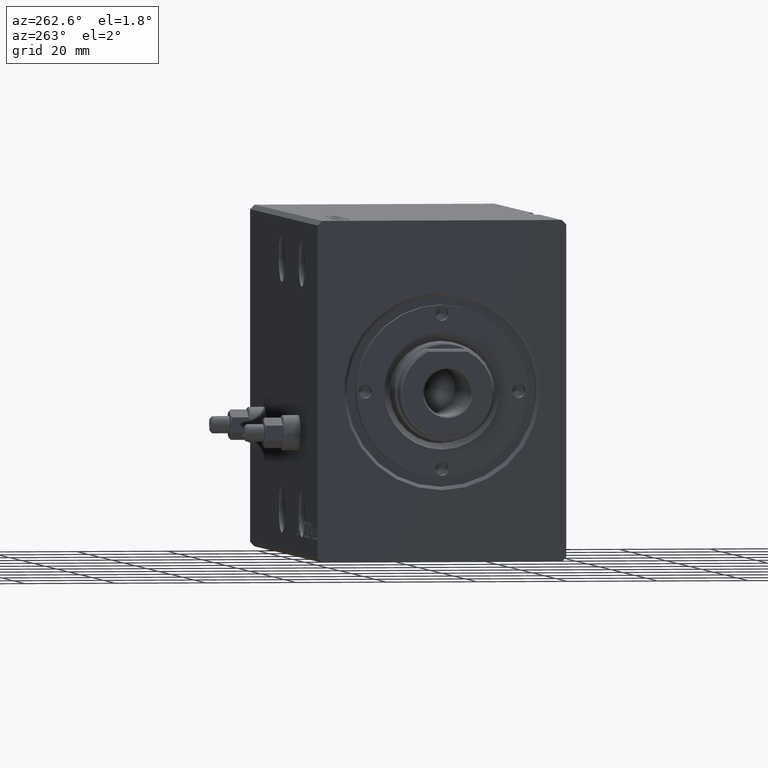
[diagram: clean part render]
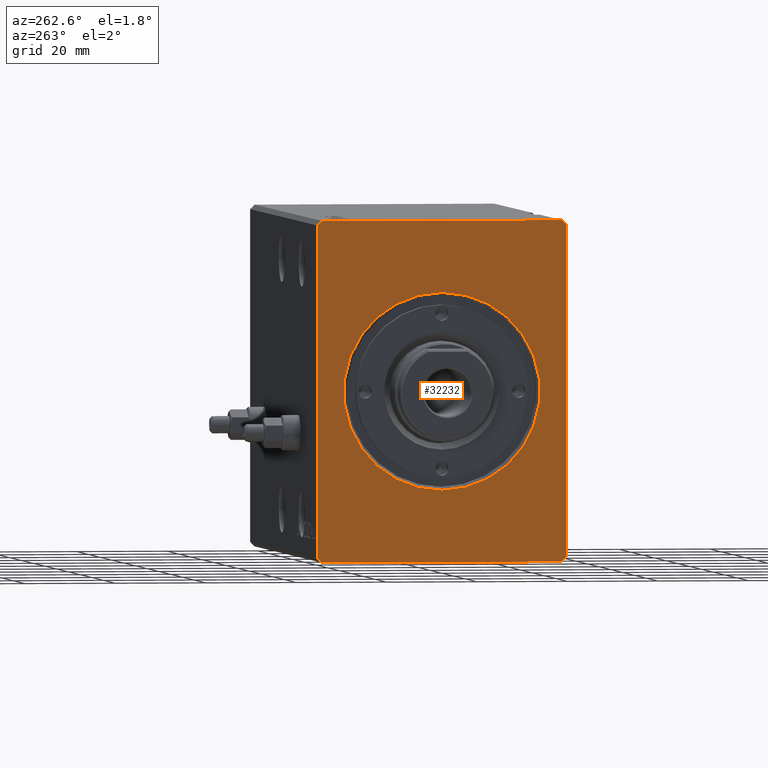
[diagram: same view with one face highlighted and labeled with its STEP entity id]
A machine part, auxiliary view. The second image highlights one B-rep face of the part: STEP entity #32232.
In plain terms, the highlighted planar face has unit normal (1, 0, 0).
Its self-contained STEP definition (entity closure, byte-faithful):
#508 = CARTESIAN_POINT ( 'NONE',  ( 0.000000000000000000, -27.50000000000000355, -36.49999999999998579 ) ) ;
#567 = CARTESIAN_POINT ( 'NONE',  ( 0.000000000000000000, 27.50000000000000711, -36.49999999999999289 ) ) ;
#670 = CARTESIAN_POINT ( 'NONE',  ( 0.000000000000000000, 0.000000000000000000, 0.000000000000000000 ) ) ;
#791 = VERTEX_POINT ( 'NONE', #21009 ) ;
#2144 = EDGE_CURVE ( 'NONE', #30198, #9082, #6586, .T. ) ;
#2484 = VECTOR ( 'NONE', #38487, 1000.000000000000000 ) ;
#3703 = VECTOR ( 'NONE', #28791, 1000.000000000000114 ) ;
#4260 = CIRCLE ( 'NONE', #15728, 21.70000000000003837 ) ;
#4591 = ORIENTED_EDGE ( 'NONE', *, *, #6830, .F. ) ;
#4988 = VERTEX_POINT ( 'NONE', #12452 ) ;
#5426 = CARTESIAN_POINT ( 'NONE',  ( 0.000000000000000000, -26.50000000000000711, 37.50000000000000711 ) ) ;
#6220 = VECTOR ( 'NONE', #38258, 1000.000000000000114 ) ;
#6234 = LINE ( 'NONE', #508, #3703 ) ;
#6247 = ORIENTED_EDGE ( 'NONE', *, *, #26157, .F. ) ;
#6586 = LINE ( 'NONE', #13739, #26894 ) ;
#6830 = EDGE_CURVE ( 'NONE', #24671, #35593, #24956, .T. ) ;
#7885 = VECTOR ( 'NONE', #11102, 1000.000000000000000 ) ;
#9082 = VERTEX_POINT ( 'NONE', #23830 ) ;
#11069 = ORIENTED_EDGE ( 'NONE', *, *, #22524, .F. ) ;
#11102 = DIRECTION ( 'NONE',  ( 0.000000000000000000, -1.000000000000000000, 0.000000000000000000 ) ) ;
#11827 = DIRECTION ( 'NONE',  ( 0.000000000000000000, 0.000000000000000000, -1.000000000000000000 ) ) ;
#12452 = CARTESIAN_POINT ( 'NONE',  ( 0.000000000000000000, -27.50000000000000355, -36.49999999999998579 ) ) ;
#12941 = CARTESIAN_POINT ( 'NONE',  ( 0.000000000000000000, 26.50000000000000711, -37.49999999999999289 ) ) ;
#13236 = VERTEX_POINT ( 'NONE', #41057 ) ;
#13476 = AXIS2_PLACEMENT_3D ( 'NONE', #19818, #29507, #31175 ) ;
#13739 = CARTESIAN_POINT ( 'NONE',  ( 0.000000000000000000, -26.50000000000000711, 37.50000000000000711 ) ) ;
#13938 = ORIENTED_EDGE ( 'NONE', *, *, #2144, .F. ) ;
#14049 = LINE ( 'NONE', #24599, #7885 ) ;
#15621 = VERTEX_POINT ( 'NONE', #40864 ) ;
#15728 = AXIS2_PLACEMENT_3D ( 'NONE', #670, #39272, #37878 ) ;
#15795 = VERTEX_POINT ( 'NONE', #39766 ) ;
#16652 = FACE_BOUND ( 'NONE', #30991, .T. ) ;
#18141 = CARTESIAN_POINT ( 'NONE',  ( 0.000000000000000000, 0.000000000000000000, 0.000000000000000000 ) ) ;
#18750 = ORIENTED_EDGE ( 'NONE', *, *, #40499, .T. ) ;
#19052 = EDGE_CURVE ( 'NONE', #35593, #30198, #14049, .T. ) ;
#19061 = LINE ( 'NONE', #12941, #6220 ) ;
#19128 = EDGE_CURVE ( 'NONE', #9082, #4988, #25626, .T. ) ;
#19818 = CARTESIAN_POINT ( 'NONE',  ( 0.000000000000000000, 0.000000000000000000, 0.000000000000000000 ) ) ;
#20192 = DIRECTION ( 'NONE',  ( 0.000000000000000000, -4.752667057470704875E-17, 1.000000000000000000 ) ) ;
#21009 = CARTESIAN_POINT ( 'NONE',  ( 0.000000000000000000, 0.000000000000000000, 21.70000000000003837 ) ) ;
#21771 = AXIS2_PLACEMENT_3D ( 'NONE', #18141, #40712, #11827 ) ;
#21824 = CARTESIAN_POINT ( 'NONE',  ( 0.000000000000000000, 26.50000000000000711, -37.49999999999999289 ) ) ;
#21859 = ORIENTED_EDGE ( 'NONE', *, *, #19128, .F. ) ;
#22524 = EDGE_CURVE ( 'NONE', #15621, #24671, #39172, .T. ) ;
#23313 = ORIENTED_EDGE ( 'NONE', *, *, #38897, .F. ) ;
#23830 = CARTESIAN_POINT ( 'NONE',  ( 0.000000000000000000, -27.50000000000000711, 36.50000000000000711 ) ) ;
#24599 = CARTESIAN_POINT ( 'NONE',  ( 0.000000000000000000, 26.50000000000000355, 37.50000000000000711 ) ) ;
#24671 = VERTEX_POINT ( 'NONE', #32044 ) ;
#24956 = LINE ( 'NONE', #34837, #33069 ) ;
#25626 = LINE ( 'NONE', #31114, #2484 ) ;
#26157 = EDGE_CURVE ( 'NONE', #4988, #15795, #6234, .T. ) ;
#26894 = VECTOR ( 'NONE', #29141, 1000.000000000000114 ) ;
#26933 = EDGE_CURVE ( 'NONE', #15795, #38887, #34886, .T. ) ;
#27003 = EDGE_LOOP ( 'NONE', ( #4591, #11069, #23313, #28136, #6247, #21859, #13938, #33624 ) ) ;
#28112 = DIRECTION ( 'NONE',  ( 0.000000000000000000, -0.7071067811865474617, 0.7071067811865474617 ) ) ;
#28136 = ORIENTED_EDGE ( 'NONE', *, *, #26933, .F. ) ;
#28791 = DIRECTION ( 'NONE',  ( 0.000000000000000000, 0.7071067811865451302, -0.7071067811865500152 ) ) ;
#29141 = DIRECTION ( 'NONE',  ( 0.000000000000000000, -0.7071067811865474617, -0.7071067811865474617 ) ) ;
#29302 = PLANE ( 'NONE',  #13476 ) ;
#29507 = DIRECTION ( 'NONE',  ( 1.000000000000000000, 0.000000000000000000, 0.000000000000000000 ) ) ;
#30132 = FACE_OUTER_BOUND ( 'NONE', #27003, .T. ) ;
#30198 = VERTEX_POINT ( 'NONE', #5426 ) ;
#30538 = ORIENTED_EDGE ( 'NONE', *, *, #40197, .T. ) ;
#30991 = EDGE_LOOP ( 'NONE', ( #18750, #30538 ) ) ;
#31114 = CARTESIAN_POINT ( 'NONE',  ( 0.000000000000000000, -27.50000000000000711, 36.50000000000000711 ) ) ;
#31175 = DIRECTION ( 'NONE',  ( 0.000000000000000000, 0.000000000000000000, -1.000000000000000000 ) ) ;
#31693 = CARTESIAN_POINT ( 'NONE',  ( 0.000000000000000000, 26.50000000000000355, 37.50000000000000711 ) ) ;
#32044 = CARTESIAN_POINT ( 'NONE',  ( 0.000000000000000000, 27.50000000000000355, 36.50000000000000711 ) ) ;
#32232 = ADVANCED_FACE ( 'NONE', ( #16652, #30132 ), #29302, .F. ) ;
#33069 = VECTOR ( 'NONE', #28112, 1000.000000000000114 ) ;
#33624 = ORIENTED_EDGE ( 'NONE', *, *, #19052, .F. ) ;
#34837 = CARTESIAN_POINT ( 'NONE',  ( 0.000000000000000000, 27.50000000000000355, 36.50000000000000711 ) ) ;
#34886 = LINE ( 'NONE', #41641, #40750 ) ;
#35593 = VERTEX_POINT ( 'NONE', #31693 ) ;
#37878 = DIRECTION ( 'NONE',  ( 0.000000000000000000, 0.000000000000000000, -1.000000000000000000 ) ) ;
#38258 = DIRECTION ( 'NONE',  ( 0.000000000000000000, 0.7071067811865474617, 0.7071067811865474617 ) ) ;
#38487 = DIRECTION ( 'NONE',  ( 0.000000000000000000, 4.752667057470705491E-17, -1.000000000000000000 ) ) ;
#38589 = CIRCLE ( 'NONE', #21771, 21.70000000000003837 ) ;
#38887 = VERTEX_POINT ( 'NONE', #21824 ) ;
#38897 = EDGE_CURVE ( 'NONE', #38887, #15621, #19061, .T. ) ;
#39172 = LINE ( 'NONE', #567, #40960 ) ;
#39272 = DIRECTION ( 'NONE',  ( 1.000000000000000000, 0.000000000000000000, 0.000000000000000000 ) ) ;
#39766 = CARTESIAN_POINT ( 'NONE',  ( 0.000000000000000000, -26.50000000000000355, -37.49999999999999289 ) ) ;
#40197 = EDGE_CURVE ( 'NONE', #13236, #791, #38589, .T. ) ;
#40499 = EDGE_CURVE ( 'NONE', #791, #13236, #4260, .T. ) ;
#40712 = DIRECTION ( 'NONE',  ( 1.000000000000000000, 0.000000000000000000, 0.000000000000000000 ) ) ;
#40750 = VECTOR ( 'NONE', #41439, 1000.000000000000000 ) ;
#40864 = CARTESIAN_POINT ( 'NONE',  ( 0.000000000000000000, 27.50000000000000711, -36.49999999999999289 ) ) ;
#40960 = VECTOR ( 'NONE', #20192, 1000.000000000000000 ) ;
#41057 = CARTESIAN_POINT ( 'NONE',  ( 0.000000000000000000, 2.657483554149761471E-15, -21.70000000000003837 ) ) ;
#41439 = DIRECTION ( 'NONE',  ( 0.000000000000000000, 1.000000000000000000, 0.000000000000000000 ) ) ;
#41641 = CARTESIAN_POINT ( 'NONE',  ( 0.000000000000000000, -26.50000000000000355, -37.49999999999999289 ) ) ;